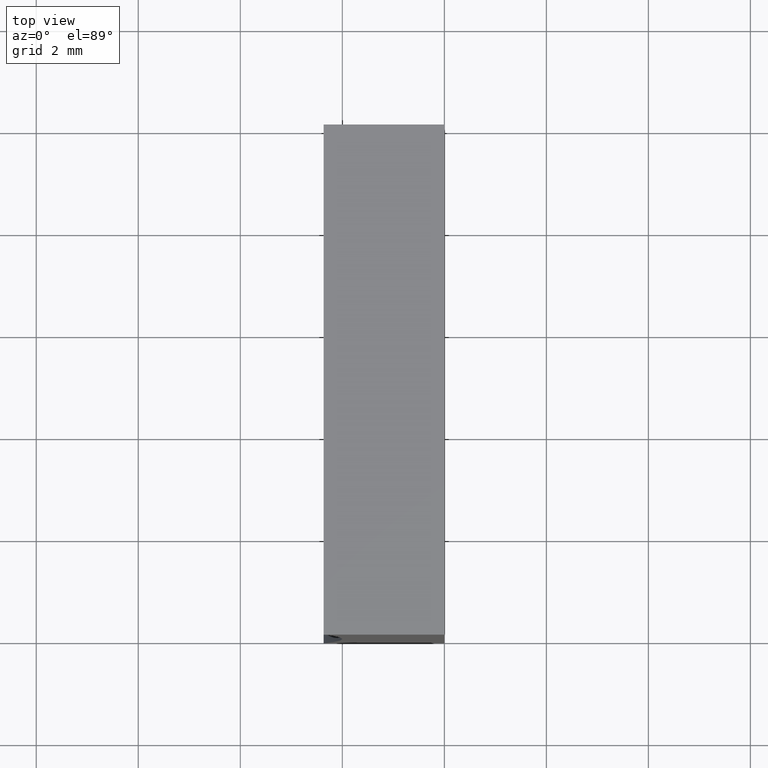
[diagram: clean part render]
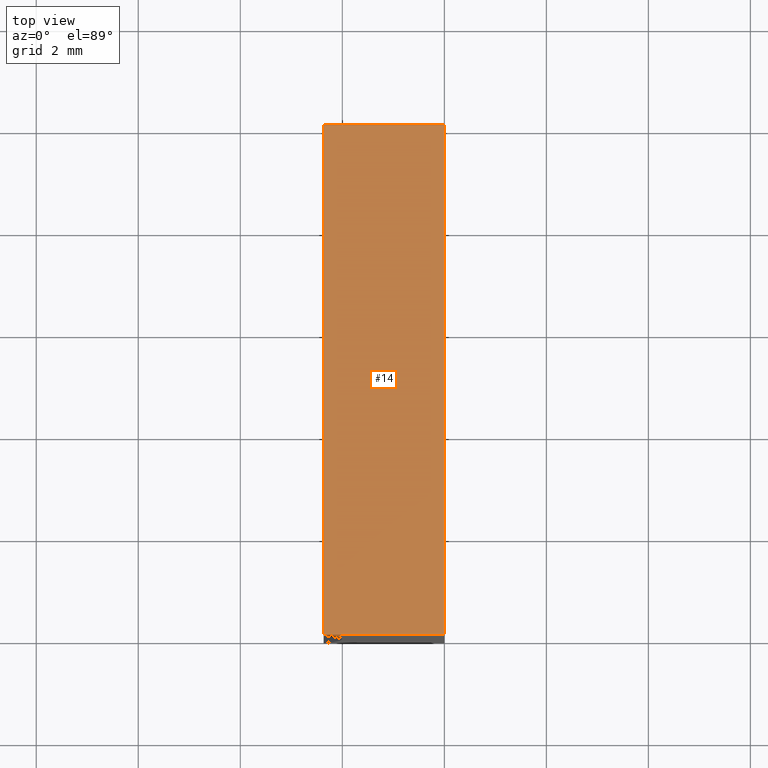
[diagram: same view with one face highlighted and labeled with its STEP entity id]
A machine part, top view. The second image highlights one B-rep face of the part: STEP entity #14.
In plain terms, the highlighted planar face has unit normal (-0, 0, -1).
Its self-contained STEP definition (entity closure, byte-faithful):
#2 = DIRECTION ( 'NONE',  ( 1.000000000000000000, -0.0000000000000000000, -7.332349904615361600E-016 ) ) ;
#9 = ORIENTED_EDGE ( 'NONE', *, *, #62, .F. ) ;
#13 = VECTOR ( 'NONE', #32, 1000.000000000000000 ) ;
#14 = ADVANCED_FACE ( 'NONE', ( #111 ), #54, .F. ) ;
#17 = CARTESIAN_POINT ( 'NONE',  ( -2.365849282349280300, 10.00000000000000000, 10.00000000000000200 ) ) ;
#18 = LINE ( 'NONE', #124, #26 ) ;
#20 = LINE ( 'NONE', #117, #13 ) ;
#21 = VERTEX_POINT ( 'NONE', #97 ) ;
#26 = VECTOR ( 'NONE', #2, 1000.000000000000000 ) ;
#32 = DIRECTION ( 'NONE',  ( -0.0000000000000000000, -1.000000000000000000, -0.0000000000000000000 ) ) ;
#35 = DIRECTION ( 'NONE',  ( -0.0000000000000000000, -1.000000000000000000, -0.0000000000000000000 ) ) ;
#51 = CARTESIAN_POINT ( 'NONE',  ( -2.365849282349280300, 10.00000000000000000, 10.00000000000000200 ) ) ;
#54 = PLANE ( 'NONE',  #56 ) ;
#56 = AXIS2_PLACEMENT_3D ( 'NONE', #68, #122, #126 ) ;
#60 = ORIENTED_EDGE ( 'NONE', *, *, #100, .T. ) ;
#62 = EDGE_CURVE ( 'NONE', #196, #85, #115, .T. ) ;
#68 = CARTESIAN_POINT ( 'NONE',  ( 6.123233995736766300E-016, 10.00000000000000000, 10.00000000000000000 ) ) ;
#73 = CARTESIAN_POINT ( 'NONE',  ( -2.365849282349280300, 0.0000000000000000000, 10.00000000000000200 ) ) ;
#77 = CARTESIAN_POINT ( 'NONE',  ( 6.123233995736766300E-016, 10.00000000000000000, 10.00000000000000000 ) ) ;
#78 = ORIENTED_EDGE ( 'NONE', *, *, #147, .F. ) ;
#85 = VERTEX_POINT ( 'NONE', #179 ) ;
#95 = LINE ( 'NONE', #51, #106 ) ;
#97 = CARTESIAN_POINT ( 'NONE',  ( 6.123233995736766300E-016, 0.0000000000000000000, 10.00000000000000000 ) ) ;
#100 = EDGE_CURVE ( 'NONE', #112, #21, #18, .T. ) ;
#106 = VECTOR ( 'NONE', #35, 1000.000000000000000 ) ;
#111 = FACE_OUTER_BOUND ( 'NONE', #168, .T. ) ;
#112 = VERTEX_POINT ( 'NONE', #73 ) ;
#115 = LINE ( 'NONE', #77, #136 ) ;
#117 = CARTESIAN_POINT ( 'NONE',  ( 6.123233995736766300E-016, 10.00000000000000000, 10.00000000000000000 ) ) ;
#122 = DIRECTION ( 'NONE',  ( -7.332349904615362600E-016, 0.0000000000000000000, -1.000000000000000000 ) ) ;
#124 = CARTESIAN_POINT ( 'NONE',  ( 6.123233995736766300E-016, 0.0000000000000000000, 10.00000000000000000 ) ) ;
#126 = DIRECTION ( 'NONE',  ( -1.000000000000000000, 0.0000000000000000000, 7.332349904615362600E-016 ) ) ;
#136 = VECTOR ( 'NONE', #138, 1000.000000000000000 ) ;
#138 = DIRECTION ( 'NONE',  ( 1.000000000000000000, -0.0000000000000000000, -7.332349904615361600E-016 ) ) ;
#147 = EDGE_CURVE ( 'NONE', #85, #21, #20, .T. ) ;
#154 = EDGE_CURVE ( 'NONE', #196, #112, #95, .T. ) ;
#168 = EDGE_LOOP ( 'NONE', ( #60, #78, #9, #197 ) ) ;
#179 = CARTESIAN_POINT ( 'NONE',  ( 6.123233995736766300E-016, 10.00000000000000000, 10.00000000000000000 ) ) ;
#196 = VERTEX_POINT ( 'NONE', #17 ) ;
#197 = ORIENTED_EDGE ( 'NONE', *, *, #154, .T. ) ;